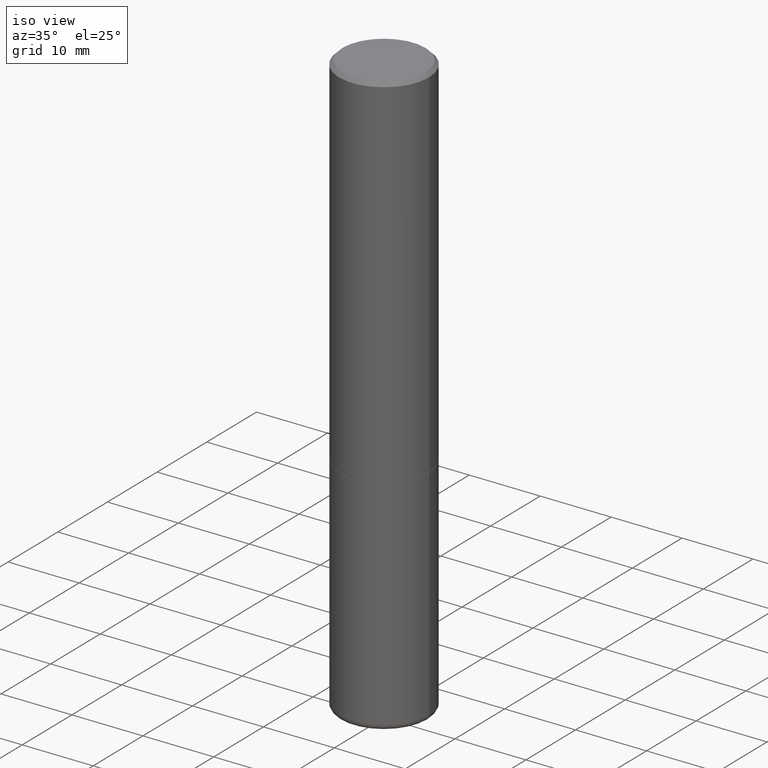
[diagram: clean part render]
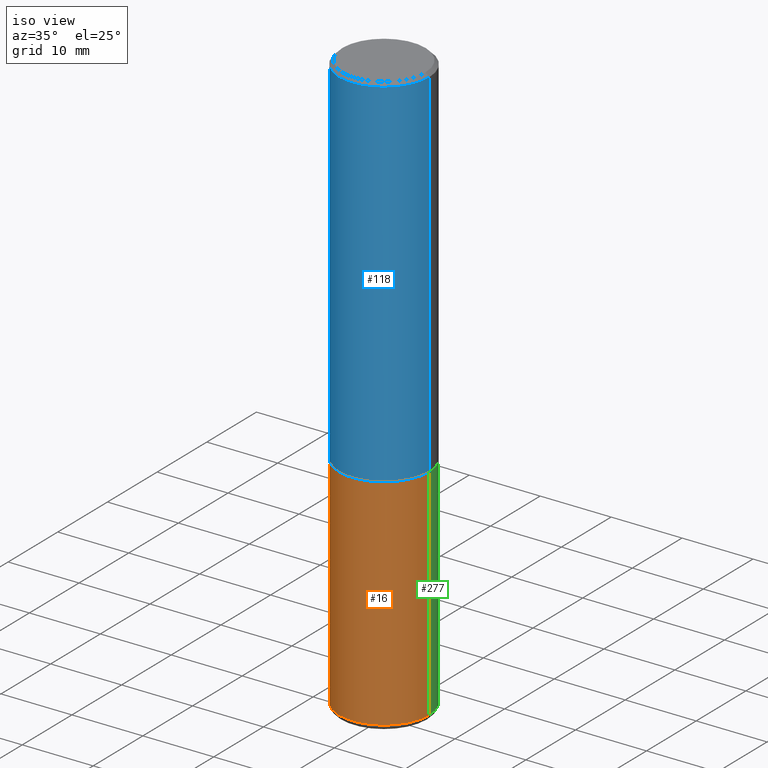
[diagram: same view with three faces highlighted in distinct colors, each labeled with its STEP entity id]
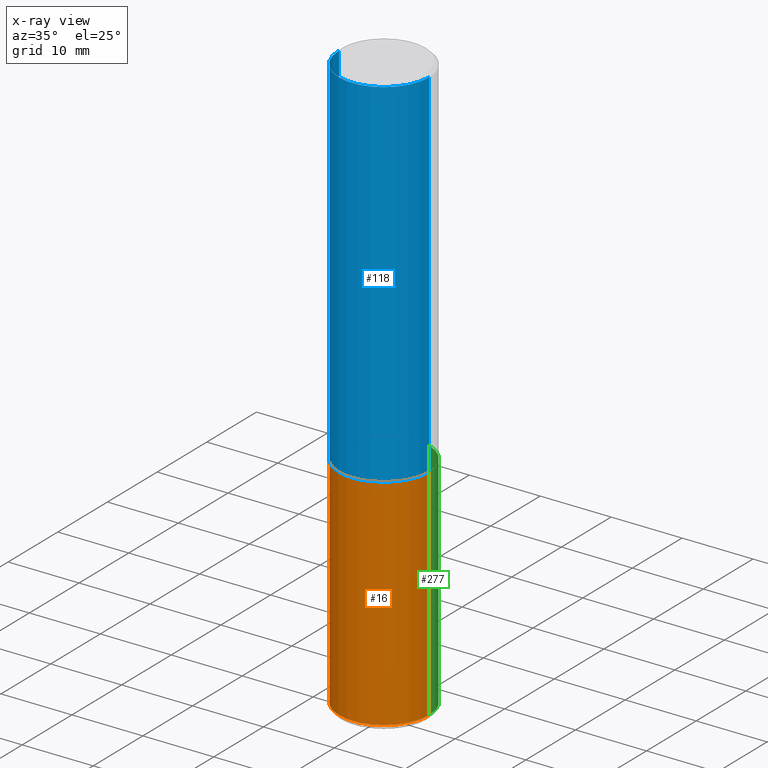
[diagram: x-ray of the same camera — body ghosted, the three highlighted faces saturated]
A machine part, iso view with three faces highlighted in distinct colors.
The next image is the same camera in x-ray (body ghosted, the three faces saturated) — at least one of them is partly hidden behind the body in this view.
Their STEP definitions:

[orange] entity #16 — the highlighted cylindrical surface (partial cylindrical patch) has radius 6.35 mm, axis along (-0, 0, 1).
#7 = DIRECTION ( 'NONE',  ( -2.445468806185136597E-29, 3.491481338843145583E-15, 1.000000000000000000 ) ) ;
#8 = DIRECTION ( 'NONE',  ( 1.000000000000000000, -6.982962677686266711E-15, 4.876176775795935793E-29 ) ) ;
#16 = ADVANCED_FACE ( 'NONE', ( #272 ), #408, .T. ) ;
#30 = EDGE_CURVE ( 'NONE', #365, #201, #107, .T. ) ;
#39 = CIRCLE ( 'NONE', #278, 0.2500000000000000000 ) ;
#66 = AXIS2_PLACEMENT_3D ( 'NONE', #106, #126, #159 ) ;
#68 = DIRECTION ( 'NONE',  ( 1.000000000000000000, -6.982962677686270655E-15, 0.000000000000000000 ) ) ;
#89 = EDGE_CURVE ( 'NONE', #365, #282, #39, .T. ) ;
#102 = ORIENTED_EDGE ( 'NONE', *, *, #30, .F. ) ;
#104 = EDGE_CURVE ( 'NONE', #201, #401, #113, .T. ) ;
#106 = CARTESIAN_POINT ( 'NONE',  ( 4.890937612370273194E-29, -6.982962677686291165E-15, -2.000000000000000000 ) ) ;
#107 = LINE ( 'NONE', #300, #252 ) ;
#113 = CIRCLE ( 'NONE', #66, 0.2500000000000000000 ) ;
#120 = AXIS2_PLACEMENT_3D ( 'NONE', #397, #161, #8 ) ;
#126 = DIRECTION ( 'NONE',  ( -2.445468806185136597E-29, 3.491481338843145583E-15, 1.000000000000000000 ) ) ;
#129 = ORIENTED_EDGE ( 'NONE', *, *, #89, .T. ) ;
#153 = VECTOR ( 'NONE', #395, 39.37007874015748143 ) ;
#159 = DIRECTION ( 'NONE',  ( 1.000000000000000000, -6.982962677686266711E-15, 0.000000000000000000 ) ) ;
#161 = DIRECTION ( 'NONE',  ( -2.445468806185136597E-29, 3.491481338843145583E-15, 1.000000000000000000 ) ) ;
#163 = LINE ( 'NONE', #275, #153 ) ;
#201 = VERTEX_POINT ( 'NONE', #260 ) ;
#203 = ORIENTED_EDGE ( 'NONE', *, *, #217, .T. ) ;
#217 = EDGE_CURVE ( 'NONE', #282, #401, #163, .T. ) ;
#222 = CARTESIAN_POINT ( 'NONE',  ( -0.2499999999999998612, -9.466213071674679013E-15, -3.220000000000000195 ) ) ;
#233 = ORIENTED_EDGE ( 'NONE', *, *, #104, .F. ) ;
#240 = CARTESIAN_POINT ( 'NONE',  ( 7.874409555916140425E-29, -1.124256991107492948E-14, -3.220000000000000195 ) ) ;
#252 = VECTOR ( 'NONE', #368, 39.37007874015748143 ) ;
#260 = CARTESIAN_POINT ( 'NONE',  ( -0.2500000000000000000, -7.336409454980359463E-15, -2.000000000000000000 ) ) ;
#272 = FACE_OUTER_BOUND ( 'NONE', #318, .T. ) ;
#275 = CARTESIAN_POINT ( 'NONE',  ( 0.2500000000000000000, -1.745740669421566678E-15, 1.219044193948983948E-29 ) ) ;
#278 = AXIS2_PLACEMENT_3D ( 'NONE', #240, #7, #68 ) ;
#282 = VERTEX_POINT ( 'NONE', #295 ) ;
#295 = CARTESIAN_POINT ( 'NONE',  ( 0.2499999999999998612, -1.298831058049649773E-14, -3.220000000000000195 ) ) ;
#300 = CARTESIAN_POINT ( 'NONE',  ( -0.2500000000000000000, 1.776356839400250465E-15, -1.229733772563726445E-29 ) ) ;
#304 = CARTESIAN_POINT ( 'NONE',  ( 0.2500000000000000000, -8.728703347107857054E-15, -2.000000000000000000 ) ) ;
#318 = EDGE_LOOP ( 'NONE', ( #102, #129, #203, #233 ) ) ;
#365 = VERTEX_POINT ( 'NONE', #222 ) ;
#368 = DIRECTION ( 'NONE',  ( -2.445468806185136877E-29, 3.491481338843145188E-15, 1.000000000000000000 ) ) ;
#395 = DIRECTION ( 'NONE',  ( -2.445468806185136877E-29, 3.491481338843145188E-15, 1.000000000000000000 ) ) ;
#397 = CARTESIAN_POINT ( 'NONE',  ( 0.000000000000000000, 0.000000000000000000, 0.000000000000000000 ) ) ;
#401 = VERTEX_POINT ( 'NONE', #304 ) ;
#408 = CYLINDRICAL_SURFACE ( 'NONE', #120, 0.2500000000000000000 ) ;

[blue] entity #118 — the highlighted cylindrical surface (partial cylindrical patch) has radius 6.35 mm, axis along (-0, 0, 1).
#9 = EDGE_CURVE ( 'NONE', #410, #307, #237, .T. ) ;
#10 = CARTESIAN_POINT ( 'NONE',  ( -0.2500000000000001110, 1.776356839400251254E-15, -1.229733772563727006E-29 ) ) ;
#32 = DIRECTION ( 'NONE',  ( -2.445468806185136597E-29, 3.491481338843145583E-15, 1.000000000000000000 ) ) ;
#37 = DIRECTION ( 'NONE',  ( -2.445468806185136877E-29, 3.491481338843145188E-15, 1.000000000000000000 ) ) ;
#50 = AXIS2_PLACEMENT_3D ( 'NONE', #70, #32, #155 ) ;
#59 = DIRECTION ( 'NONE',  ( -2.445468806185136597E-29, 3.491481338843145583E-15, 1.000000000000000000 ) ) ;
#70 = CARTESIAN_POINT ( 'NONE',  ( 0.000000000000000000, 0.000000000000000000, 0.000000000000000000 ) ) ;
#71 = CARTESIAN_POINT ( 'NONE',  ( -0.2500000000000002776, -1.748293572161900530E-15, -1.998999999999999888 ) ) ;
#73 = CARTESIAN_POINT ( 'NONE',  ( 4.890937612370287172E-31, -6.982962677686310098E-17, -0.02000000000000005593 ) ) ;
#112 = ORIENTED_EDGE ( 'NONE', *, *, #9, .F. ) ;
#114 = EDGE_CURVE ( 'NONE', #369, #285, #366, .T. ) ;
#118 = ADVANCED_FACE ( 'NONE', ( #391 ), #362, .T. ) ;
#125 = CIRCLE ( 'NONE', #154, 0.2500000000000002776 ) ;
#133 = DIRECTION ( 'NONE',  ( -2.445468806185136877E-29, 3.491481338843145188E-15, 1.000000000000000000 ) ) ;
#154 = AXIS2_PLACEMENT_3D ( 'NONE', #349, #59, #180 ) ;
#155 = DIRECTION ( 'NONE',  ( 1.000000000000000000, -6.982962677686266711E-15, 4.876176775795935793E-29 ) ) ;
#156 = DIRECTION ( 'NONE',  ( 1.000000000000000000, -6.982962677686267499E-15, 0.000000000000000000 ) ) ;
#160 = VECTOR ( 'NONE', #133, 39.37007874015748143 ) ;
#174 = ORIENTED_EDGE ( 'NONE', *, *, #114, .T. ) ;
#180 = DIRECTION ( 'NONE',  ( 1.000000000000000000, -6.982962677686266711E-15, 0.000000000000000000 ) ) ;
#181 = VECTOR ( 'NONE', #37, 39.37007874015748143 ) ;
#193 = ORIENTED_EDGE ( 'NONE', *, *, #224, .F. ) ;
#197 = EDGE_LOOP ( 'NONE', ( #112, #390, #174, #193 ) ) ;
#200 = DIRECTION ( 'NONE',  ( -2.445468806185136597E-29, 3.491481338843145583E-15, 1.000000000000000000 ) ) ;
#224 = EDGE_CURVE ( 'NONE', #307, #285, #324, .T. ) ;
#237 = LINE ( 'NONE', #10, #160 ) ;
#262 = CARTESIAN_POINT ( 'NONE',  ( 0.2499999999999999167, -1.784954126219745400E-15, -0.02000000000000005593 ) ) ;
#270 = CARTESIAN_POINT ( 'NONE',  ( 0.2500000000000001110, -1.745740669421567467E-15, 1.219044193948984509E-29 ) ) ;
#285 = VERTEX_POINT ( 'NONE', #262 ) ;
#301 = CARTESIAN_POINT ( 'NONE',  ( -0.2499999999999999167, 1.675911042644703182E-15, -0.02000000000000005593 ) ) ;
#307 = VERTEX_POINT ( 'NONE', #301 ) ;
#324 = CIRCLE ( 'NONE', #329, 0.2499999999999999167 ) ;
#327 = CARTESIAN_POINT ( 'NONE',  ( 0.2500000000000002776, -8.725211865769015625E-15, -1.998999999999999888 ) ) ;
#329 = AXIS2_PLACEMENT_3D ( 'NONE', #73, #200, #156 ) ;
#349 = CARTESIAN_POINT ( 'NONE',  ( 4.888492143564087591E-29, -6.979471196347447369E-15, -1.998999999999999888 ) ) ;
#362 = CYLINDRICAL_SURFACE ( 'NONE', #50, 0.2500000000000001110 ) ;
#366 = LINE ( 'NONE', #270, #181 ) ;
#369 = VERTEX_POINT ( 'NONE', #327 ) ;
#382 = EDGE_CURVE ( 'NONE', #410, #369, #125, .T. ) ;
#390 = ORIENTED_EDGE ( 'NONE', *, *, #382, .T. ) ;
#391 = FACE_OUTER_BOUND ( 'NONE', #197, .T. ) ;
#410 = VERTEX_POINT ( 'NONE', #71 ) ;

[green] entity #277 — the highlighted cylindrical surface (partial cylindrical patch) has radius 6.35 mm, axis along (-0, 0, 1).
#1 = DIRECTION ( 'NONE',  ( -2.445468806185136597E-29, 3.491481338843145583E-15, 1.000000000000000000 ) ) ;
#11 = ORIENTED_EDGE ( 'NONE', *, *, #217, .F. ) ;
#18 = ORIENTED_EDGE ( 'NONE', *, *, #30, .T. ) ;
#26 = ORIENTED_EDGE ( 'NONE', *, *, #62, .F. ) ;
#30 = EDGE_CURVE ( 'NONE', #365, #201, #107, .T. ) ;
#31 = CARTESIAN_POINT ( 'NONE',  ( 0.000000000000000000, 0.000000000000000000, 0.000000000000000000 ) ) ;
#62 = EDGE_CURVE ( 'NONE', #401, #201, #108, .T. ) ;
#64 = DIRECTION ( 'NONE',  ( 1.000000000000000000, -6.982962677686266711E-15, 4.876176775795935793E-29 ) ) ;
#65 = DIRECTION ( 'NONE',  ( 1.000000000000000000, -6.982962677686270655E-15, 0.000000000000000000 ) ) ;
#107 = LINE ( 'NONE', #300, #252 ) ;
#108 = CIRCLE ( 'NONE', #363, 0.2500000000000000000 ) ;
#119 = EDGE_CURVE ( 'NONE', #282, #365, #242, .T. ) ;
#134 = EDGE_LOOP ( 'NONE', ( #216, #18, #26, #11 ) ) ;
#152 = DIRECTION ( 'NONE',  ( -2.445468806185136597E-29, 3.491481338843145583E-15, 1.000000000000000000 ) ) ;
#153 = VECTOR ( 'NONE', #395, 39.37007874015748143 ) ;
#163 = LINE ( 'NONE', #275, #153 ) ;
#198 = CARTESIAN_POINT ( 'NONE',  ( 4.890937612370273194E-29, -6.982962677686291165E-15, -2.000000000000000000 ) ) ;
#201 = VERTEX_POINT ( 'NONE', #260 ) ;
#214 = FACE_OUTER_BOUND ( 'NONE', #134, .T. ) ;
#216 = ORIENTED_EDGE ( 'NONE', *, *, #119, .T. ) ;
#217 = EDGE_CURVE ( 'NONE', #282, #401, #163, .T. ) ;
#222 = CARTESIAN_POINT ( 'NONE',  ( -0.2499999999999998612, -9.466213071674679013E-15, -3.220000000000000195 ) ) ;
#235 = DIRECTION ( 'NONE',  ( 1.000000000000000000, -6.982962677686266711E-15, 0.000000000000000000 ) ) ;
#242 = CIRCLE ( 'NONE', #266, 0.2500000000000000000 ) ;
#252 = VECTOR ( 'NONE', #368, 39.37007874015748143 ) ;
#259 = DIRECTION ( 'NONE',  ( -2.445468806185136597E-29, 3.491481338843145583E-15, 1.000000000000000000 ) ) ;
#260 = CARTESIAN_POINT ( 'NONE',  ( -0.2500000000000000000, -7.336409454980359463E-15, -2.000000000000000000 ) ) ;
#266 = AXIS2_PLACEMENT_3D ( 'NONE', #298, #259, #65 ) ;
#275 = CARTESIAN_POINT ( 'NONE',  ( 0.2500000000000000000, -1.745740669421566678E-15, 1.219044193948983948E-29 ) ) ;
#277 = ADVANCED_FACE ( 'NONE', ( #214 ), #384, .T. ) ;
#282 = VERTEX_POINT ( 'NONE', #295 ) ;
#295 = CARTESIAN_POINT ( 'NONE',  ( 0.2499999999999998612, -1.298831058049649773E-14, -3.220000000000000195 ) ) ;
#298 = CARTESIAN_POINT ( 'NONE',  ( 7.874409555916140425E-29, -1.124256991107492948E-14, -3.220000000000000195 ) ) ;
#300 = CARTESIAN_POINT ( 'NONE',  ( -0.2500000000000000000, 1.776356839400250465E-15, -1.229733772563726445E-29 ) ) ;
#304 = CARTESIAN_POINT ( 'NONE',  ( 0.2500000000000000000, -8.728703347107857054E-15, -2.000000000000000000 ) ) ;
#363 = AXIS2_PLACEMENT_3D ( 'NONE', #198, #1, #235 ) ;
#365 = VERTEX_POINT ( 'NONE', #222 ) ;
#368 = DIRECTION ( 'NONE',  ( -2.445468806185136877E-29, 3.491481338843145188E-15, 1.000000000000000000 ) ) ;
#384 = CYLINDRICAL_SURFACE ( 'NONE', #417, 0.2500000000000000000 ) ;
#395 = DIRECTION ( 'NONE',  ( -2.445468806185136877E-29, 3.491481338843145188E-15, 1.000000000000000000 ) ) ;
#401 = VERTEX_POINT ( 'NONE', #304 ) ;
#417 = AXIS2_PLACEMENT_3D ( 'NONE', #31, #152, #64 ) ;